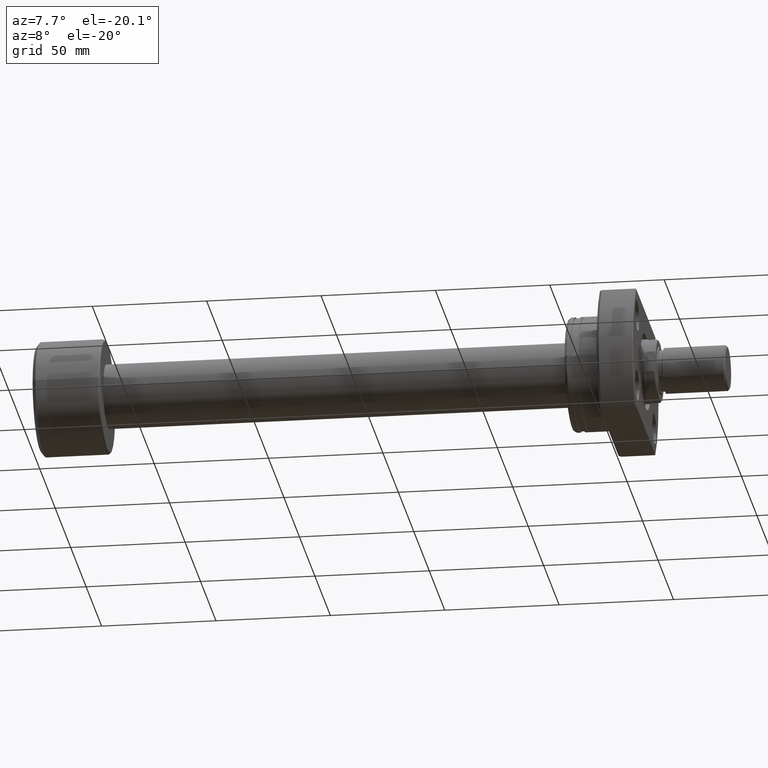
[diagram: clean part render]
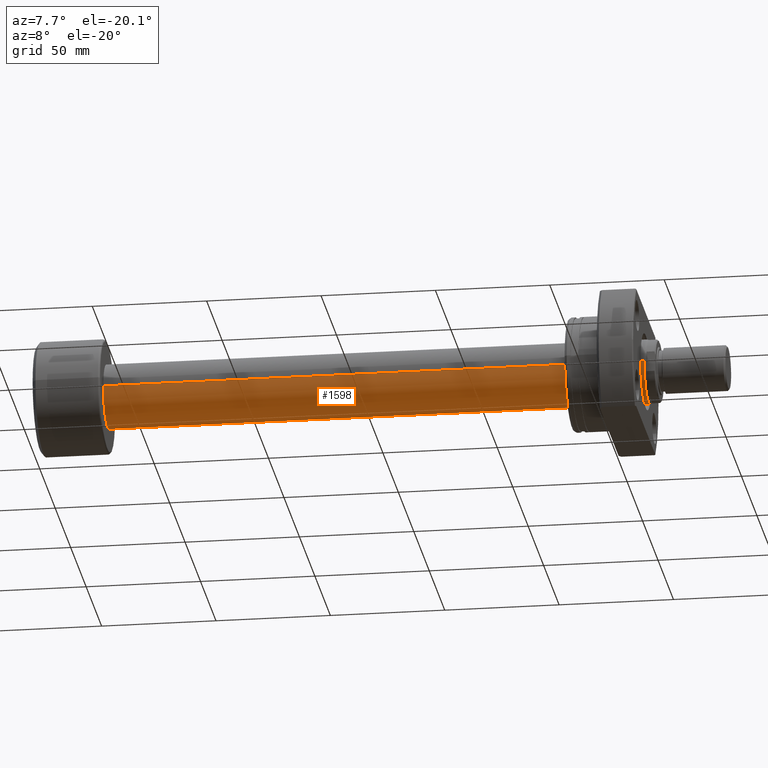
[diagram: same view with one face highlighted and labeled with its STEP entity id]
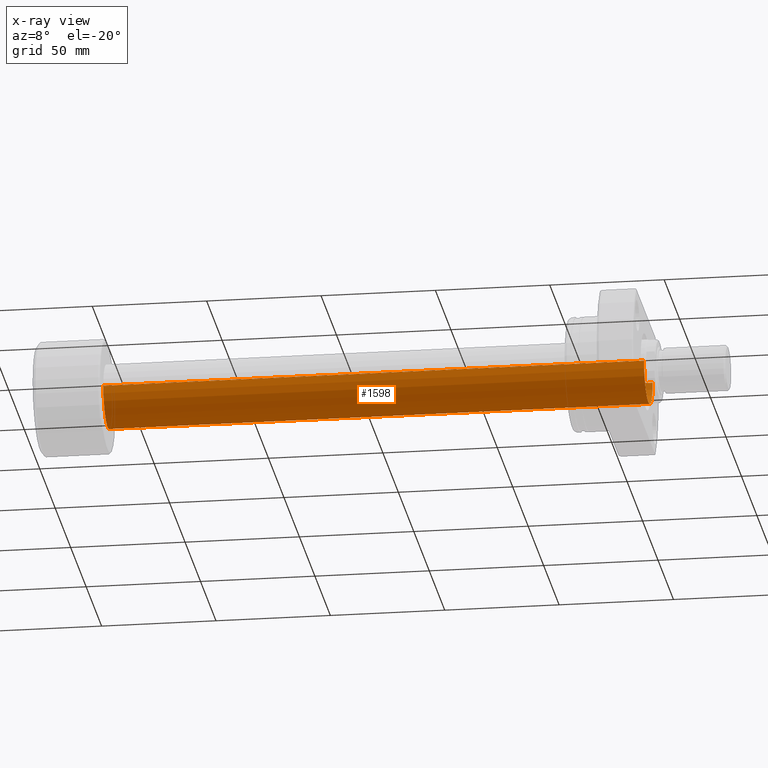
[diagram: x-ray of the same camera — body ghosted, the highlighted face saturated]
A machine part, auxiliary view. The second image highlights one B-rep face of the part: STEP entity #1598.
The next image is the same camera in x-ray: the body ghosted, the highlighted face saturated — about 0% of this face is hidden behind the body in this view.
In plain terms, the highlighted cylindrical surface (edge-blend (fillet) strip) has radius 14 mm, axis along (-1, -0, -0).
Its self-contained STEP definition (entity closure, byte-faithful):
#150 = DIRECTION ( 'NONE',  ( -1.000000000000000000, -1.069542322069065801E-17, -0.000000000000000000 ) ) ;
#194 = DIRECTION ( 'NONE',  ( 0.000000000000000000, -1.000000000000000000, 0.000000000000000000 ) ) ;
#221 = ORIENTED_EDGE ( 'NONE', *, *, #2030, .F. ) ;
#254 = FACE_OUTER_BOUND ( 'NONE', #1139, .T. ) ;
#271 = VERTEX_POINT ( 'NONE', #3197 ) ;
#296 = DIRECTION ( 'NONE',  ( 1.069542322069065801E-17, -1.000000000000000000, 0.000000000000000000 ) ) ;
#382 = ORIENTED_EDGE ( 'NONE', *, *, #415, .F. ) ;
#415 = EDGE_CURVE ( 'NONE', #3478, #271, #1862, .T. ) ;
#691 = DIRECTION ( 'NONE',  ( 0.000000000000000000, -1.000000000000000000, 0.000000000000000000 ) ) ;
#752 = LINE ( 'NONE', #1576, #3373 ) ;
#773 = CARTESIAN_POINT ( 'NONE',  ( -1.497359250896702752E-16, 14.00000000000009948, 1.714505518806306668E-15 ) ) ;
#1029 = DIRECTION ( 'NONE',  ( -1.000000000000000000, -1.069542322069065801E-17, -0.000000000000000000 ) ) ;
#1048 = AXIS2_PLACEMENT_3D ( 'NONE', #2331, #2604, #296 ) ;
#1139 = EDGE_LOOP ( 'NONE', ( #382, #1335, #1980, #221 ) ) ;
#1224 = VERTEX_POINT ( 'NONE', #1746 ) ;
#1335 = ORIENTED_EDGE ( 'NONE', *, *, #3292, .T. ) ;
#1351 = AXIS2_PLACEMENT_3D ( 'NONE', #3263, #150, #194 ) ;
#1509 = DIRECTION ( 'NONE',  ( -1.000000000000000000, -1.069542322069065801E-17, -0.000000000000000000 ) ) ;
#1540 = CARTESIAN_POINT ( 'NONE',  ( 266.0667575123237611, -14.00000000000019718, 0.000000000000000000 ) ) ;
#1576 = CARTESIAN_POINT ( 'NONE',  ( 1.497359250896702752E-16, -14.00000000000009948, 0.000000000000000000 ) ) ;
#1598 = ADVANCED_FACE ( 'NONE', ( #254 ), #2869, .T. ) ;
#1746 = CARTESIAN_POINT ( 'NONE',  ( 29.70000000000000995, -13.99999999999999822, 0.000000000000000000 ) ) ;
#1862 = LINE ( 'NONE', #773, #3587 ) ;
#1936 = CIRCLE ( 'NONE', #3148, 14.00000000000019895 ) ;
#1980 = ORIENTED_EDGE ( 'NONE', *, *, #2984, .T. ) ;
#2030 = EDGE_CURVE ( 'NONE', #271, #1224, #2972, .T. ) ;
#2142 = CARTESIAN_POINT ( 'NONE',  ( 266.0667575123237611, 14.00000000000020250, 1.714505518806319290E-15 ) ) ;
#2170 = DIRECTION ( 'NONE',  ( -1.000000000000000000, -1.069542322069065801E-17, -0.000000000000000000 ) ) ;
#2331 = CARTESIAN_POINT ( 'NONE',  ( 0.000000000000000000, 0.000000000000000000, 0.000000000000000000 ) ) ;
#2604 = DIRECTION ( 'NONE',  ( -1.000000000000000000, -1.069542322069065801E-17, -0.000000000000000000 ) ) ;
#2869 = CYLINDRICAL_SURFACE ( 'NONE', #1048, 14.00000000000009948 ) ;
#2972 = CIRCLE ( 'NONE', #1351, 13.99999999999999822 ) ;
#2973 = VERTEX_POINT ( 'NONE', #1540 ) ;
#2984 = EDGE_CURVE ( 'NONE', #2973, #1224, #752, .T. ) ;
#3148 = AXIS2_PLACEMENT_3D ( 'NONE', #3246, #1509, #691 ) ;
#3197 = CARTESIAN_POINT ( 'NONE',  ( 29.70000000000000995, 13.99999999999999822, 1.714505518806300554E-15 ) ) ;
#3246 = CARTESIAN_POINT ( 'NONE',  ( 266.0667575123237611, 2.845696576551178119E-15, 0.000000000000000000 ) ) ;
#3263 = CARTESIAN_POINT ( 'NONE',  ( 29.70000000000000995, 3.176540696545126980E-16, 0.000000000000000000 ) ) ;
#3292 = EDGE_CURVE ( 'NONE', #3478, #2973, #1936, .T. ) ;
#3373 = VECTOR ( 'NONE', #1029, 1000.000000000000000 ) ;
#3478 = VERTEX_POINT ( 'NONE', #2142 ) ;
#3587 = VECTOR ( 'NONE', #2170, 1000.000000000000000 ) ;